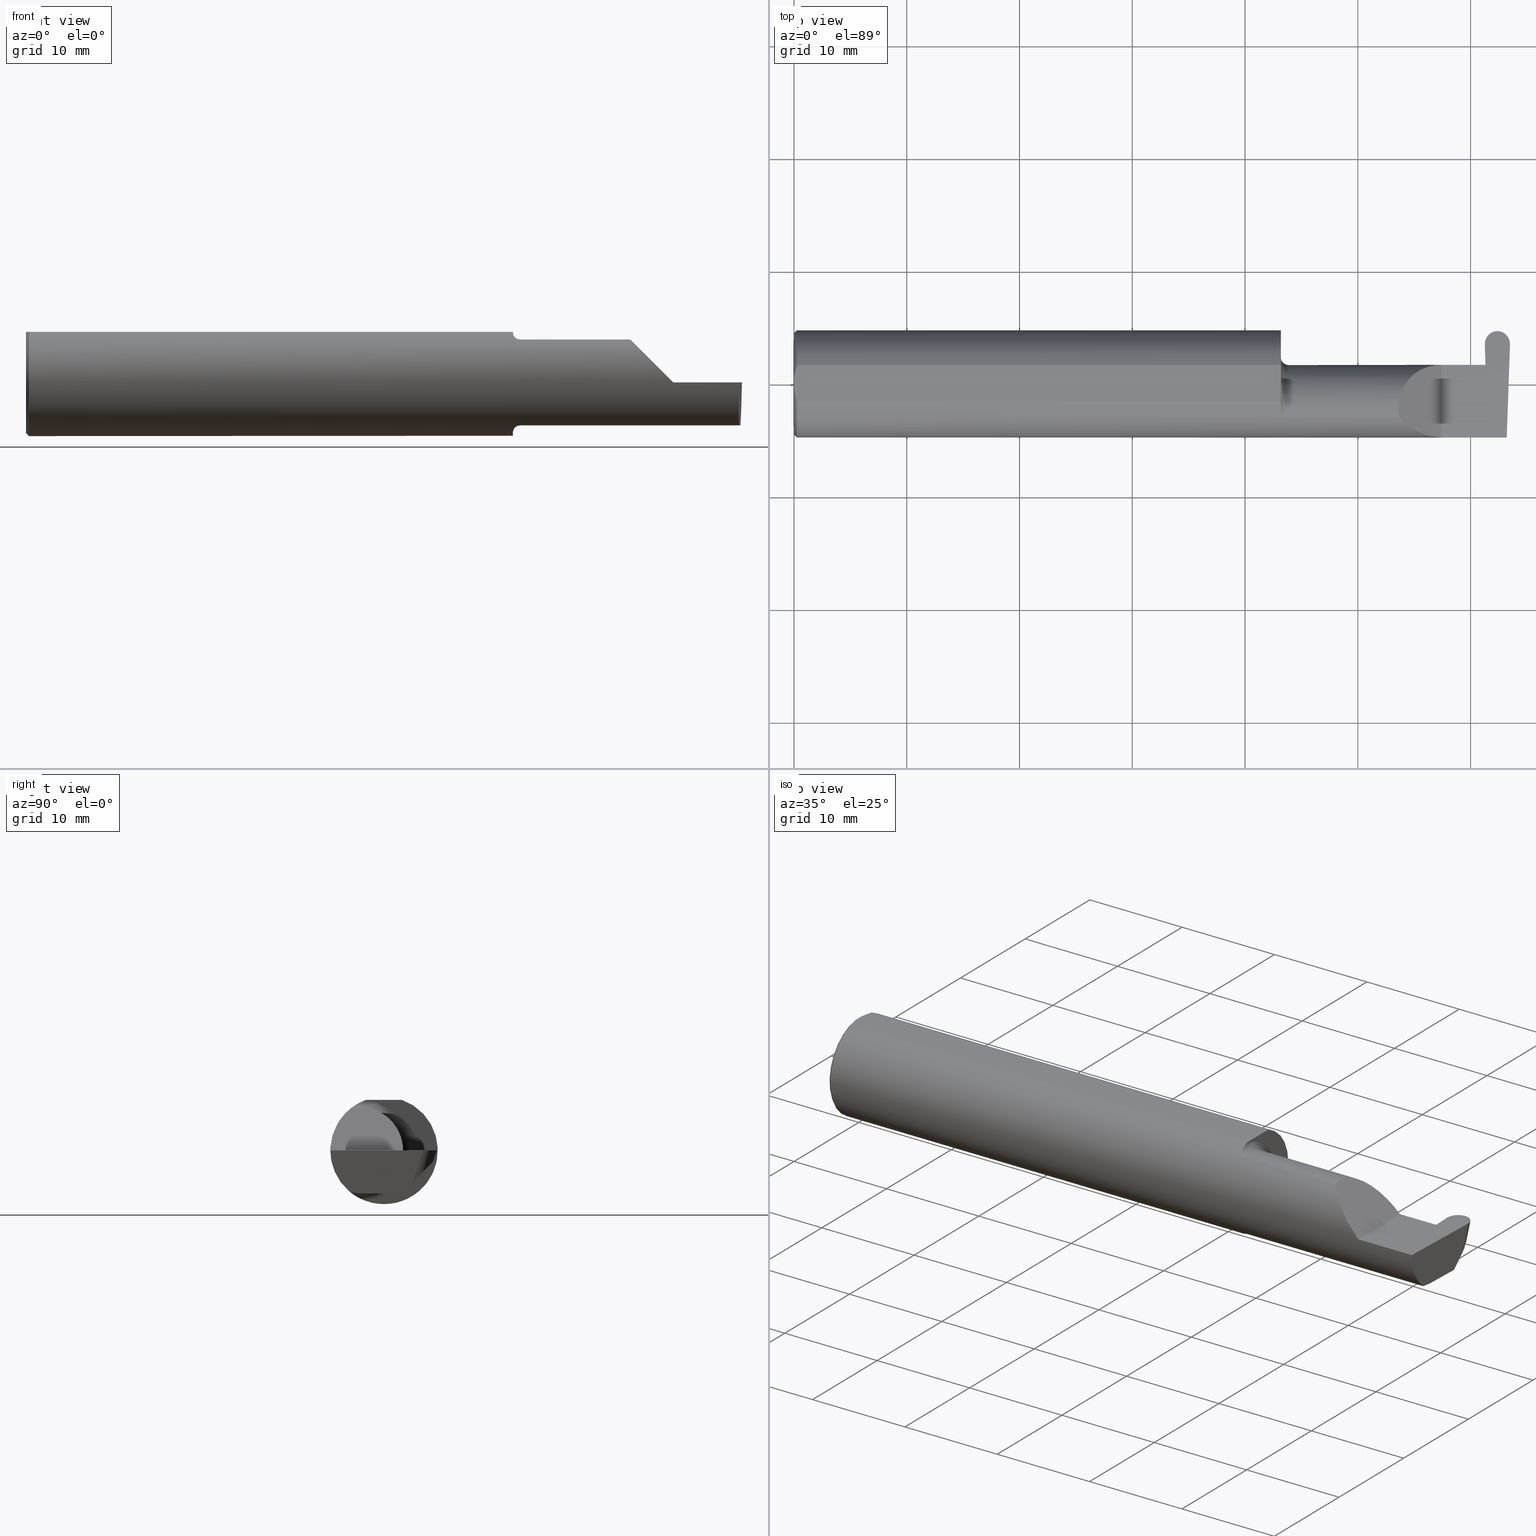
[diagram: canonical four-view strip — front | top / right | iso, engineering-drawing reading convention]
A machine part, canonical four-view strip (front | top / right | iso — engineering-drawing reading convention). The complete STEP part file that produces these views, byte-faithful:
ISO-10303-21;
HEADER;
FILE_DESCRIPTION (( 'STEP AP203' ),
    '1' );
FILE_NAME ('222179-GFR087-12.STEP',
    '2024-06-28T18:03:14',
    ( '' ),
    ( '' ),
    'SwSTEP 2.0',
    'SolidWorks 2024',
    '' );
FILE_SCHEMA (( 'CONFIG_CONTROL_DESIGN' ));
ENDSEC;

DATA;
#1 = CARTESIAN_POINT ( 'NONE',  ( 2.494604638945828956, 0.06030305154315079852, -0.1500000000000000500 ) ) ;
#2 = ORIENTED_EDGE ( 'NONE', *, *, #480, .F. ) ;
#3 = CARTESIAN_POINT ( 'NONE',  ( 2.488471823259917226, -0.1172600179964006784, -0.1461167706989303094 ) ) ;
#4 = DIRECTION ( 'NONE',  ( -2.398695346254066018E-17, 1.000000000000000000, 0.000000000000000000 ) ) ;
#5 = ORIENTED_EDGE ( 'NONE', *, *, #268, .F. ) ;
#6 = EDGE_CURVE ( 'NONE', #579, #405, #473, .T. ) ;
#7 = DIRECTION ( 'NONE',  ( 0.000000000000000000, -0.7071067811865434649, -0.7071067811865515695 ) ) ;
#8 = APPROVAL_PERSON_ORGANIZATION ( #537, #309, #125 ) ;
#9 = FACE_OUTER_BOUND ( 'NONE', #608, .T. ) ;
#10 = VERTEX_POINT ( 'NONE', #22 ) ;
#11 = PLANE ( 'NONE',  #260 ) ;
#12 = CARTESIAN_POINT ( 'NONE',  ( 0.005151108632379722968, -0.04888864921576022843, 0.1763499999999999235 ) ) ;
#13 = EDGE_LOOP ( 'NONE', ( #325, #252, #225, #598, #290 ) ) ;
#14 = PERSON ( 'UNSPECIFIED', 'UNSPECIFIED', 'UNSPECIFIED', ('UNSPECIFIED'), ('UNSPECIFIED'), ('UNSPECIFIED') ) ;
#15 = CALENDAR_DATE ( 2024, 28, 6 ) ;
#16 = DIRECTION ( 'NONE',  ( 1.000000000000000000, 0.000000000000000000, 0.000000000000000000 ) ) ;
#17 = ORIENTED_EDGE ( 'NONE', *, *, #128, .F. ) ;
#18 = SHAPE_DEFINITION_REPRESENTATION ( #276, #133 ) ;
#19 = CARTESIAN_POINT ( 'NONE',  ( 2.417117359278221134, -0.08344969023253218099, -0.1500000000000000500 ) ) ;
#20 = AXIS2_PLACEMENT_3D ( 'NONE', #331, #284, #607 ) ;
#21 = EDGE_CURVE ( 'NONE', #586, #239, #690, .T. ) ;
#22 = CARTESIAN_POINT ( 'NONE',  ( 0.01000000000000013205, 0.06325108694718235836, 0.1763499999999999235 ) ) ;
#23 = SECURITY_CLASSIFICATION_LEVEL ( 'unclassified' ) ;
#24 = CARTESIAN_POINT ( 'NONE',  ( 1.724999999999999867, -0.1172600179964006784, -0.1461167706989303650 ) ) ;
#25 = ORIENTED_EDGE ( 'NONE', *, *, #426, .T. ) ;
#26 = LINE ( 'NONE', #19, #373 ) ;
#27 = EDGE_LOOP ( 'NONE', ( #571, #553, #267, #168, #187 ) ) ;
#28 = EDGE_CURVE ( 'NONE', #63, #681, #199, .T. ) ;
#29 = AXIS2_PLACEMENT_3D ( 'NONE', #498, #16, #191 ) ;
#30 = DIRECTION ( 'NONE',  ( 0.02739170151059986541, 0.3089010440752013031, 0.9506996579664918068 ) ) ;
#31 = VECTOR ( 'NONE', #60, 39.37007874015748854 ) ;
#32 = CARTESIAN_POINT ( 'NONE',  ( 0.000000000000000000, 0.000000000000000000, -0.1773499999999999521 ) ) ;
#33 = ORIENTED_EDGE ( 'NONE', *, *, #610, .T. ) ;
#34 = MECHANICAL_CONTEXT ( 'NONE', #245, 'mechanical' ) ;
#35 = CARTESIAN_POINT ( 'NONE',  ( 1.699999999999999956, -0.08334999999999999354, 0.000000000000000000 ) ) ;
#36 = DIRECTION ( 'NONE',  ( -0.03489949670249319069, -0.9993908270190959842, 0.000000000000000000 ) ) ;
#37 = ORIENTED_EDGE ( 'NONE', *, *, #170, .T. ) ;
#38 = CALENDAR_DATE ( 2024, 28, 6 ) ;
#39 = CARTESIAN_POINT ( 'NONE',  ( 2.417117327835069940, -0.08334999999999997966, -0.1500000000000000222 ) ) ;
#40 = LINE ( 'NONE', #485, #661 ) ;
#41 = ADVANCED_FACE ( 'NONE', ( #361 ), #78, .T. ) ;
#42 = TOROIDAL_SURFACE ( 'NONE', #541, 0.1749999999999999334, 0.02499999999999993894 ) ;
#43 = ORIENTED_EDGE ( 'NONE', *, *, #316, .T. ) ;
#44 = CARTESIAN_POINT ( 'NONE',  ( 2.405147528298442694, 0.06655862405286418204, -0.005234924505380752179 ) ) ;
#45 = CARTESIAN_POINT ( 'NONE',  ( 1.699999999999999956, -0.06325108694718287183, 0.1763499999999999235 ) ) ;
#46 = EDGE_LOOP ( 'NONE', ( #429, #705, #25, #442, #676, #464, #425, #432, #209, #58 ) ) ;
#47 = CARTESIAN_POINT ( 'NONE',  ( 2.455902844999999779, 0.1800649307963945456, -0.01411139200474581350 ) ) ;
#48 = DIRECTION ( 'NONE',  ( -0.000000000000000000, 1.000000000000000000, -0.000000000000000000 ) ) ;
#49 = ORIENTED_EDGE ( 'NONE', *, *, #268, .T. ) ;
#50 = EDGE_CURVE ( 'NONE', #665, #614, #417, .T. ) ;
#51 =( CONVERSION_BASED_UNIT ( 'INCH', #174 ) LENGTH_UNIT ( ) NAMED_UNIT ( #447 ) );
#52 = CARTESIAN_POINT ( 'NONE',  ( 2.489588163846105484, -0.08335000000000010456, -0.1500000000000000500 ) ) ;
#53 = ORIENTED_EDGE ( 'NONE', *, *, #263, .F. ) ;
#54 = AXIS2_PLACEMENT_3D ( 'NONE', #539, #428, #157 ) ;
#55 = AXIS2_PLACEMENT_3D ( 'NONE', #634, #569, #72 ) ;
#56 = CARTESIAN_POINT ( 'NONE',  ( 2.733184360054361939, -0.08335000000000010456, -0.1500000000000000500 ) ) ;
#57 = CARTESIAN_POINT ( 'NONE',  ( 1.702960551809340473, -0.09317341542745755101, -0.1626248379125196653 ) ) ;
#58 = ORIENTED_EDGE ( 'NONE', *, *, #503, .F. ) ;
#59 =( BOUNDED_CURVE ( )  B_SPLINE_CURVE ( 3, ( #597, #543, #701, #145 ),
 .UNSPECIFIED., .F., .T. ) 
 B_SPLINE_CURVE_WITH_KNOTS ( ( 4, 4 ),
 ( 5.852427379562186616, 6.746954780470634461 ),
 .UNSPECIFIED. ) 
 CURVE ( )  GEOMETRIC_REPRESENTATION_ITEM ( )  RATIONAL_B_SPLINE_CURVE ( ( 1.000000000000000000, 0.9344226172588802060, 0.9344226172588802060, 1.000000000000000000 ) ) 
 REPRESENTATION_ITEM ( '' )  );
#60 = DIRECTION ( 'NONE',  ( -0.02739170151060013256, 0.3089010440752013587, 0.9506996579664918068 ) ) ;
#61 = CARTESIAN_POINT ( 'NONE',  ( 2.417117327835069940, -0.08334999999999997966, -0.1500000000000000222 ) ) ;
#62 = EDGE_CURVE ( 'NONE', #123, #575, #247, .T. ) ;
#63 = VERTEX_POINT ( 'NONE', #255 ) ;
#64 = CC_DESIGN_PERSON_AND_ORGANIZATION_ASSIGNMENT ( #197, #520, ( #683 ) ) ;
#65 = LINE ( 'NONE', #223, #403 ) ;
#66 = CARTESIAN_POINT ( 'NONE',  ( 2.455902844999999779, 0.1722946655495198598, -0.03800838599362971193 ) ) ;
#67 = ORIENTED_EDGE ( 'NONE', *, *, #330, .T. ) ;
#68 = AXIS2_PLACEMENT_3D ( 'NONE', #360, #521, #629 ) ;
#69 = CARTESIAN_POINT ( 'NONE',  ( 0.001616639753276021213, 0.03405189565400638246, 0.1763499999999999235 ) ) ;
#70 = CARTESIAN_POINT ( 'NONE',  ( 2.455902844999999779, 0.1748862760345988587, -0.03004384457775134687 ) ) ;
#71 = EDGE_LOOP ( 'NONE', ( #695, #311, #410 ) ) ;
#72 = DIRECTION ( 'NONE',  ( 1.000000000000000000, 0.000000000000000000, 0.000000000000000000 ) ) ;
#73 = PRODUCT_DEFINITION ( 'UNKNOWN', '', #683, #640 ) ;
#74 = CARTESIAN_POINT ( 'NONE',  ( 1.713203859946834218, -0.1120371980050639538, -0.1501764597936558199 ) ) ;
#75 = VERTEX_POINT ( 'NONE', #45 ) ;
#76 = ADVANCED_FACE ( 'NONE', ( #205 ), #158, .T. ) ;
#77 = LINE ( 'NONE', #295, #215 ) ;
#78 = CYLINDRICAL_SURFACE ( 'NONE', #402, 0.04399999999999999745 ) ;
#79 = DATE_AND_TIME ( #674, #422 ) ;
#80 = DIRECTION ( 'NONE',  ( 1.000000000000000000, -0.000000000000000000, -0.000000000000000000 ) ) ;
#81 = LOCAL_TIME ( 11, 3, 14.00000000000000000, #688 ) ;
#82 = ORIENTED_EDGE ( 'NONE', *, *, #278, .F. ) ;
#83 = FACE_OUTER_BOUND ( 'NONE', #130, .T. ) ;
#84 = EDGE_LOOP ( 'NONE', ( #230, #378, #293, #522, #138, #648, #394, #336, #372, #98, #236, #216, #398 ) ) ;
#85 = ADVANCED_FACE ( 'NONE', ( #376 ), #208, .F. ) ;
#86 = CARTESIAN_POINT ( 'NONE',  ( 2.417002248080593940, 0.06409798100084941608, -0.1462050705423014185 ) ) ;
#87 = CARTESIAN_POINT ( 'NONE',  ( 2.499922542640338197, 0.1372830298860648612, 0.0005638438891804136138 ) ) ;
#88 = CARTESIAN_POINT ( 'NONE',  ( 2.202189699843948745, -0.1873500000000000443, 0.05781030015605096578 ) ) ;
#89 = VECTOR ( 'NONE', #440, 39.37007874015748143 ) ;
#90 = ORIENTED_EDGE ( 'NONE', *, *, #6, .F. ) ;
#91 = APPROVAL_ROLE ( '' ) ;
#92 = ADVANCED_FACE ( 'NONE', ( #647 ), #653, .F. ) ;
#93 = CARTESIAN_POINT ( 'NONE',  ( 1.700353553376444671, -0.07868116735658683969, 0.1701139256562800017 ) ) ;
#94 = FACE_OUTER_BOUND ( 'NONE', #140, .T. ) ;
#95 = ADVANCED_FACE ( 'NONE', ( #270 ), #594, .F. ) ;
#96 = CARTESIAN_POINT ( 'NONE',  ( 1.724999999999999867, -0.1172600179964006784, 0.1461167706989303650 ) ) ;
#97 = DIRECTION ( 'NONE',  ( 0.01806679408117492502, 0.000000000000000000, -0.9998367821557817559 ) ) ;
#98 = ORIENTED_EDGE ( 'NONE', *, *, #602, .T. ) ;
#99 = FACE_OUTER_BOUND ( 'NONE', #13, .T. ) ;
#100 = CYLINDRICAL_SURFACE ( 'NONE', #637, 0.1873499999999999888 ) ;
#101 = AXIS2_PLACEMENT_3D ( 'NONE', #285, #611, #175 ) ;
#102 = EDGE_LOOP ( 'NONE', ( #280, #632, #303, #234, #408, #502 ) ) ;
#103 = CARTESIAN_POINT ( 'NONE',  ( 2.405177986947488300, 0.06658908270190942724, -0.003489949670253836810 ) ) ;
#104 = DIRECTION ( 'NONE',  ( -1.000000000000000000, -0.000000000000000000, -0.000000000000000000 ) ) ;
#105 = EDGE_LOOP ( 'NONE', ( #679, #241, #127, #450 ) ) ;
#106 = EDGE_CURVE ( 'NONE', #381, #656, #40, .T. ) ;
#107 = CARTESIAN_POINT ( 'NONE',  ( 1.702945243422982813, -0.09312071749437433876, 0.1626553472577906001 ) ) ;
#108 = DIRECTION ( 'NONE',  ( 0.000000000000000000, -0.9998476951563912696, 0.01745240643728358451 ) ) ;
#109 = DIRECTION ( 'NONE',  ( 0.000000000000000000, 0.000000000000000000, 1.000000000000000000 ) ) ;
#110 = CARTESIAN_POINT ( 'NONE',  ( 2.414359555045604289, 0.06664999999999991764, -9.645561665750322649E-21 ) ) ;
#111 = VERTEX_POINT ( 'NONE', #419 ) ;
#112 = VECTOR ( 'NONE', #577, 39.37007874015748143 ) ;
#113 = VECTOR ( 'NONE', #448, 39.37007874015748143 ) ;
#114 = CARTESIAN_POINT ( 'NONE',  ( 2.068402844999999601, -0.1172600179964006784, -0.1461167706989303094 ) ) ;
#115 = EDGE_LOOP ( 'NONE', ( #670, #43, #184, #627, #507, #673 ) ) ;
#116 = DIRECTION ( 'NONE',  ( -1.000000000000000000, -0.000000000000000000, -0.000000000000000000 ) ) ;
#117 = EDGE_CURVE ( 'NONE', #566, #513, #528, .T. ) ;
#118 = CARTESIAN_POINT ( 'NONE',  ( 1.724999999999999867, -0.1172600179964006784, 0.1461167706989303650 ) ) ;
#119 = ORIENTED_EDGE ( 'NONE', *, *, #50, .F. ) ;
#120 = B_SPLINE_CURVE_WITH_KNOTS ( 'NONE', 3,
 ( #44, #103, #593, #265 ),
 .UNSPECIFIED., .F., .F.,
 ( 4, 4 ),
 ( 0.000000000000000000, 1.000000000000000000 ),
 .UNSPECIFIED. ) ;
#121 = CARTESIAN_POINT ( 'NONE',  ( 2.496782013450319582, 0.1018667288808076804, -0.1084363226623426962 ) ) ;
#122 = LINE ( 'NONE', #114, #204 ) ;
#123 = VERTEX_POINT ( 'NONE', #52 ) ;
#124 = AXIS2_PLACEMENT_3D ( 'NONE', #350, #404, #129 ) ;
#125 = APPROVAL_ROLE ( '' ) ;
#126 = LINE ( 'NONE', #229, #89 ) ;
#127 = ORIENTED_EDGE ( 'NONE', *, *, #414, .F. ) ;
#128 = EDGE_CURVE ( 'NONE', #549, #513, #161, .T. ) ;
#129 = DIRECTION ( 'NONE',  ( 0.000000000000000000, -1.000000000000000000, 0.000000000000000000 ) ) ;
#130 = EDGE_LOOP ( 'NONE', ( #154, #536, #660 ) ) ;
#131 = CARTESIAN_POINT ( 'NONE',  ( 2.155331797197863608, 0.06665000000000001479, 0.1046682028021362204 ) ) ;
#132 = CARTESIAN_POINT ( 'NONE',  ( 2.733184360054361939, -0.08335000000000010456, -0.1500000000000000500 ) ) ;
#133 = ADVANCED_BREP_SHAPE_REPRESENTATION ( '222179-GFR087-12', ( #412, #55 ), #388 ) ;
#134 = VECTOR ( 'NONE', #365, 39.37007874015748143 ) ;
#135 = EDGE_CURVE ( 'NONE', #499, #192, #312, .T. ) ;
#136 = PLANE ( 'NONE',  #483 ) ;
#137 = APPROVAL ( #367, 'UNSPECIFIED' ) ;
#138 = ORIENTED_EDGE ( 'NONE', *, *, #426, .F. ) ;
#139 = CARTESIAN_POINT ( 'NONE',  ( 2.260000000000000231, -0.1873499999999999888, 2.939152317953647352E-17 ) ) ;
#140 = EDGE_LOOP ( 'NONE', ( #595, #476, #525, #262, #340, #2, #90, #389, #49 ) ) ;
#141 = DIRECTION ( 'NONE',  ( -0.7071067811865509034, 0.000000000000000000, 0.7071067811865440200 ) ) ;
#142 = DIRECTION ( 'NONE',  ( -1.000000000000000000, -0.000000000000000000, -0.000000000000000000 ) ) ;
#143 = COORDINATED_UNIVERSAL_TIME_OFFSET ( 8, 0, .BEHIND. ) ;
#144 = CARTESIAN_POINT ( 'NONE',  ( 2.488471823259917226, -0.1172600179964006784, -0.1461167706989303094 ) ) ;
#145 = CARTESIAN_POINT ( 'NONE',  ( 2.488576259503493926, -0.1873499999999999888, 0.000000000000000000 ) ) ;
#146 = LOCAL_TIME ( 11, 3, 14.00000000000000000, #143 ) ;
#147 = PERSON_AND_ORGANIZATION_ROLE ( 'classification_officer' ) ;
#148 = ADVANCED_FACE ( 'NONE', ( #274 ), #100, .T. ) ;
#149 = CARTESIAN_POINT ( 'NONE',  ( 0.000000000000000000, -0.01880691362238934641, 0.1763499999999999235 ) ) ;
#150 = DIRECTION ( 'NONE',  ( 0.000000000000000000, -0.01745240643728358451, -0.9998476951563912696 ) ) ;
#151 = ORIENTED_EDGE ( 'NONE', *, *, #489, .T. ) ;
#152 = CARTESIAN_POINT ( 'NONE',  ( 1.713163223656403167, -0.1119926267047278018, 0.1502091925606062472 ) ) ;
#153 = CARTESIAN_POINT ( 'NONE',  ( 2.417363697998881733, -2.354248658836814556, -0.1239957194858760936 ) ) ;
#154 = ORIENTED_EDGE ( 'NONE', *, *, #391, .F. ) ;
#155 = FACE_OUTER_BOUND ( 'NONE', #46, .T. ) ;
#156 = ADVANCED_FACE ( 'NONE', ( #547 ), #491, .F. ) ;
#157 = DIRECTION ( 'NONE',  ( 0.000000000000000000, 0.000000000000000000, -1.000000000000000000 ) ) ;
#158 = CONICAL_SURFACE ( 'NONE', #54, 0.1773499999999999521, 0.7853981633974431720 ) ;
#159 = LOCAL_TIME ( 11, 3, 14.00000000000000000, #583 ) ;
#160 = CARTESIAN_POINT ( 'NONE',  ( 2.429140065301251372, 0.1846500000000001473, 8.878101985489642774E-18 ) ) ;
#161 = LINE ( 'NONE', #487, #193 ) ;
#162 = ORIENTED_EDGE ( 'NONE', *, *, #221, .T. ) ;
#163 = LINE ( 'NONE', #400, #682 ) ;
#164 = EDGE_LOOP ( 'NONE', ( #37, #540, #283, #162 ) ) ;
#165 = CC_DESIGN_PERSON_AND_ORGANIZATION_ASSIGNMENT ( #691, #638, ( #683 ) ) ;
#166 = CARTESIAN_POINT ( 'NONE',  ( 2.415023676549680420, 0.1018667288808076665, -0.1084363226623427101 ) ) ;
#167 = DIRECTION ( 'NONE',  ( -0.03701744261649742712, -0.7066221440565398915, -0.7066221440565478851 ) ) ;
#168 = ORIENTED_EDGE ( 'NONE', *, *, #232, .T. ) ;
#169 = VECTOR ( 'NONE', #48, 39.37007874015748143 ) ;
#170 = EDGE_CURVE ( 'NONE', #322, #592, #457, .T. ) ;
#171 = CARTESIAN_POINT ( 'NONE',  ( -0.001039370078739994957, 0.1723030515431495657, -0.03799999999999999906 ) ) ;
#172 = DIRECTION ( 'NONE',  ( 0.000000000000000000, -1.000000000000000000, 0.000000000000000000 ) ) ;
#173 = VERTEX_POINT ( 'NONE', #497 ) ;
#174 = LENGTH_MEASURE_WITH_UNIT ( LENGTH_MEASURE( 0.02539999999999999897 ), #399 );
#175 = DIRECTION ( 'NONE',  ( -1.000000000000000000, 0.000000000000000000, 1.224646799147353947E-16 ) ) ;
#176 = ORIENTED_EDGE ( 'NONE', *, *, #307, .T. ) ;
#177 = LINE ( 'NONE', #443, #113 ) ;
#178 = CARTESIAN_POINT ( 'NONE',  ( 2.455902844999999779, 0.1774764172755823044, -0.02207801745350519013 ) ) ;
#179 = EDGE_CURVE ( 'NONE', #621, #579, #59, .T. ) ;
#180 = ORIENTED_EDGE ( 'NONE', *, *, #179, .F. ) ;
#181 = CIRCLE ( 'NONE', #363, 0.1749999999999999056 ) ;
#182 = PERSON_AND_ORGANIZATION ( #14, #458 ) ;
#183 = CARTESIAN_POINT ( 'NONE',  ( 2.113883229301068312, -0.1172600179964008310, 0.1461167706989301707 ) ) ;
#184 = ORIENTED_EDGE ( 'NONE', *, *, #633, .T. ) ;
#185 = PERSON_AND_ORGANIZATION ( #14, #458 ) ;
#186 = FACE_OUTER_BOUND ( 'NONE', #164, .T. ) ;
#187 = ORIENTED_EDGE ( 'NONE', *, *, #242, .T. ) ;
#188 = EDGE_CURVE ( 'NONE', #527, #111, #212, .T. ) ;
#189 = EDGE_CURVE ( 'NONE', #488, #356, #431, .T. ) ;
#190 = APPROVAL ( #257, 'UNSPECIFIED' ) ;
#191 = DIRECTION ( 'NONE',  ( 0.000000000000000000, 0.000000000000000000, -1.000000000000000000 ) ) ;
#192 = VERTEX_POINT ( 'NONE', #479 ) ;
#193 = VECTOR ( 'NONE', #259, 39.37007874015748143 ) ;
#194 = CARTESIAN_POINT ( 'NONE',  ( 1.699999999999999956, 0.1873499999999999055, 0.000000000000000000 ) ) ;
#195 = CARTESIAN_POINT ( 'NONE',  ( 3.749399456654646757E-32, -0.1873499999999999610, 3.061616997868383634E-16 ) ) ;
#196 = DIRECTION ( 'NONE',  ( 0.000000000000000000, 0.9510565162951534202, -0.3090169943749480619 ) ) ;
#197 = PERSON_AND_ORGANIZATION ( #14, #458 ) ;
#198 = CYLINDRICAL_SURFACE ( 'NONE', #413, 0.04399999999999999051 ) ;
#199 = LINE ( 'NONE', #415, #112 ) ;
#200 = ADVANCED_FACE ( 'NONE', ( #94 ), #582, .F. ) ;
#201 = APPLICATION_PROTOCOL_DEFINITION ( 'international standard', 'config_control_design', 1994, #273 ) ;
#202 = UNCERTAINTY_MEASURE_WITH_UNIT (LENGTH_MEASURE( 1.000000000000000082E-05 ), #51, 'distance_accuracy_value', 'NONE');
#203 = CARTESIAN_POINT ( 'NONE',  ( 2.488576259503493926, -0.1873499999999999888, 0.000000000000000000 ) ) ;
#204 = VECTOR ( 'NONE', #512, 39.37007874015748143 ) ;
#205 = FACE_OUTER_BOUND ( 'NONE', #436, .T. ) ;
#206 = LOCAL_TIME ( 11, 3, 14.00000000000000000, #291 ) ;
#207 = PLANE ( 'NONE',  #615 ) ;
#208 = PLANE ( 'NONE',  #518 ) ;
#209 = ORIENTED_EDGE ( 'NONE', *, *, #62, .F. ) ;
#210 = EDGE_CURVE ( 'NONE', #566, #75, #335, .T. ) ;
#211 = CARTESIAN_POINT ( 'NONE',  ( 2.411899392914586659, 0.1370998259008695541, 0.000000000000000000 ) ) ;
#212 = LINE ( 'NONE', #369, #169 ) ;
#213 = CARTESIAN_POINT ( 'NONE',  ( 2.489588163846105484, -0.08335000000000010456, -0.1500000000000000500 ) ) ;
#214 = DIRECTION ( 'NONE',  ( 0.000000000000000000, 0.000000000000000000, -1.000000000000000000 ) ) ;
#215 = VECTOR ( 'NONE', #675, 39.37007874015748143 ) ;
#216 = ORIENTED_EDGE ( 'NONE', *, *, #170, .F. ) ;
#217 = EDGE_CURVE ( 'NONE', #621, #318, #122, .T. ) ;
#218 = CARTESIAN_POINT ( 'NONE',  ( 1.708439486659307116, -0.1064616213911159653, -0.1542305641651499637 ) ) ;
#219 = CARTESIAN_POINT ( 'NONE',  ( 2.876828993045917215, 0.1873499999999998500, 0.1763499999999999235 ) ) ;
#220 = VERTEX_POINT ( 'NONE', #66 ) ;
#221 = EDGE_CURVE ( 'NONE', #556, #322, #181, .T. ) ;
#222 = B_SPLINE_CURVE_WITH_KNOTS ( 'NONE', 3,
 ( #588, #596, #93, #534, #107, #584, #258, #152, #368, #269, #530, #96 ),
 .UNSPECIFIED., .F., .F.,
 ( 4, 2, 2, 2, 2, 4 ),
 ( 4.423516731080805653E-05, 0.0004615475116586709213, 0.0008788598560065337319, 0.001296172200354396651, 0.001504828372528328436, 0.001713484544702260221 ),
 .UNSPECIFIED. ) ;
#223 = CARTESIAN_POINT ( 'NONE',  ( 2.411883147359661361, 0.1372830298860648335, 0.0005638438891804070001 ) ) ;
#224 = CARTESIAN_POINT ( 'NONE',  ( 2.417090374579074830, 0.002105059811797824979, -0.1500000000000000500 ) ) ;
#225 = ORIENTED_EDGE ( 'NONE', *, *, #278, .T. ) ;
#226 = AXIS2_PLACEMENT_3D ( 'NONE', #194, #302, #524 ) ;
#227 = CIRCLE ( 'NONE', #628, 0.1873499999999999888 ) ;
#228 = DIRECTION ( 'NONE',  ( -0.03489949670249319069, -0.9993908270190959842, 0.000000000000000000 ) ) ;
#229 = CARTESIAN_POINT ( 'NONE',  ( 2.414359555045604289, 0.06664999999999991764, -9.645561665750322649E-21 ) ) ;
#230 = ORIENTED_EDGE ( 'NONE', *, *, #217, .F. ) ;
#231 = CARTESIAN_POINT ( 'NONE',  ( 2.498904563091020492, 0.1423838600483239292, -0.06791919149482596174 ) ) ;
#232 = EDGE_CURVE ( 'NONE', #381, #63, #126, .T. ) ;
#233 = CARTESIAN_POINT ( 'NONE',  ( 0.000000000000000000, -0.06325108694718235836, 0.1763499999999999235 ) ) ;
#234 = ORIENTED_EDGE ( 'NONE', *, *, #666, .F. ) ;
#235 = CARTESIAN_POINT ( 'NONE',  ( 2.415023676549680420, 0.1018667288808076665, -0.1084363226623427101 ) ) ;
#236 = ORIENTED_EDGE ( 'NONE', *, *, #612, .F. ) ;
#237 = AXIS2_PLACEMENT_3D ( 'NONE', #153, #371, #97 ) ;
#238 = LINE ( 'NONE', #305, #433 ) ;
#239 = VERTEX_POINT ( 'NONE', #1 ) ;
#240 = DIRECTION ( 'NONE',  ( -0.02739170151059987582, -0.3089010440752013587, -0.9506996579664918068 ) ) ;
#241 = ORIENTED_EDGE ( 'NONE', *, *, #232, .F. ) ;
#242 = EDGE_CURVE ( 'NONE', #63, #499, #306, .T. ) ;
#243 = LINE ( 'NONE', #515, #694 ) ;
#244 = ORIENTED_EDGE ( 'NONE', *, *, #221, .F. ) ;
#245 = APPLICATION_CONTEXT ( 'configuration controlled 3d designs of mechanical parts and assemblies' ) ;
#246 = CARTESIAN_POINT ( 'NONE',  ( 1.724999999999999867, -0.08334999999999999354, 0.000000000000000000 ) ) ;
#247 = LINE ( 'NONE', #132, #332 ) ;
#248 = PERSON_AND_ORGANIZATION ( #14, #458 ) ;
#249 = EDGE_CURVE ( 'NONE', #575, #63, #366, .T. ) ;
#250 = B_SPLINE_CURVE_WITH_KNOTS ( 'NONE', 3,
 ( #385, #69, #342, #495 ),
 .UNSPECIFIED., .F., .F.,
 ( 4, 4 ),
 ( 0.01188664626022242071, 0.01304646959483746725 ),
 .UNSPECIFIED. ) ;
#251 = DIRECTION ( 'NONE',  ( 0.000000000000000000, 1.000000000000000000, 0.000000000000000000 ) ) ;
#252 = ORIENTED_EDGE ( 'NONE', *, *, #657, .F. ) ;
#253 = PERSON_AND_ORGANIZATION_ROLE ( 'creator' ) ;
#254 = DIRECTION ( 'NONE',  ( 0.000000000000000000, -1.000000000000000000, 0.000000000000000000 ) ) ;
#255 = CARTESIAN_POINT ( 'NONE',  ( 2.414454177608814867, 0.06655862405286415429, -0.005234924505383332580 ) ) ;
#256 = ORIENTED_EDGE ( 'NONE', *, *, #62, .T. ) ;
#257 = APPROVAL_STATUS ( 'not_yet_approved' ) ;
#258 = CARTESIAN_POINT ( 'NONE',  ( 1.708475602106621416, -0.1064978748893405935, 0.1542035505680383889 ) ) ;
#259 = DIRECTION ( 'NONE',  ( 0.7071067811865511255, 0.000000000000000000, -0.7071067811865439090 ) ) ;
#260 = AXIS2_PLACEMENT_3D ( 'NONE', #56, #109, #658 ) ;
#261 = EDGE_CURVE ( 'NONE', #566, #527, #466, .T. ) ;
#262 = ORIENTED_EDGE ( 'NONE', *, *, #610, .F. ) ;
#263 = EDGE_CURVE ( 'NONE', #665, #239, #292, .T. ) ;
#264 = CC_DESIGN_PERSON_AND_ORGANIZATION_ASSIGNMENT ( #298, #253, ( #73 ) ) ;
#265 = CARTESIAN_POINT ( 'NONE',  ( 2.405238904245578624, 0.06664999999999991764, 0.000000000000000000 ) ) ;
#266 = DIRECTION ( 'NONE',  ( 1.000000000000000000, 0.000000000000000000, 0.000000000000000000 ) ) ;
#267 = ORIENTED_EDGE ( 'NONE', *, *, #106, .F. ) ;
#268 = EDGE_CURVE ( 'NONE', #614, #654, #587, .T. ) ;
#269 = CARTESIAN_POINT ( 'NONE',  ( 1.719481469043492528, -0.1163560528186166759, 0.1468472430636322823 ) ) ;
#270 = FACE_OUTER_BOUND ( 'NONE', #105, .T. ) ;
#271 = ORIENTED_EDGE ( 'NONE', *, *, #128, .T. ) ;
#272 = LINE ( 'NONE', #383, #31 ) ;
#273 = APPLICATION_CONTEXT ( 'configuration controlled 3d designs of mechanical parts and assemblies' ) ;
#274 = FACE_OUTER_BOUND ( 'NONE', #84, .T. ) ;
#275 = VECTOR ( 'NONE', #630, 39.37007874015748143 ) ;
#276 = PRODUCT_DEFINITION_SHAPE ( 'NONE', 'NONE',  #73 ) ;
#277 =( NAMED_UNIT ( * ) SI_UNIT ( $, .STERADIAN. ) SOLID_ANGLE_UNIT ( ) );
#278 = EDGE_CURVE ( 'NONE', #544, #220, #463, .T. ) ;
#279 = CARTESIAN_POINT ( 'NONE',  ( 1.699999999999999734, -0.07368234487347204154, -0.1723418180300747282 ) ) ;
#280 = ORIENTED_EDGE ( 'NONE', *, *, #210, .T. ) ;
#281 = PLANE ( 'NONE',  #639 ) ;
#282 = CARTESIAN_POINT ( 'NONE',  ( 0.01000000000000013205, -0.06325108694718235836, 0.1763499999999999235 ) ) ;
#283 = ORIENTED_EDGE ( 'NONE', *, *, #554, .T. ) ;
#284 = DIRECTION ( 'NONE',  ( -1.000000000000000000, -0.000000000000000000, -0.000000000000000000 ) ) ;
#285 = CARTESIAN_POINT ( 'NONE',  ( 2.500000000000000000, -0.2500000000000000555, 0.000000000000000000 ) ) ;
#286 = ORIENTED_EDGE ( 'NONE', *, *, #465, .T. ) ;
#287 = AXIS2_PLACEMENT_3D ( 'NONE', #219, #501, #384 ) ;
#288 = CARTESIAN_POINT ( 'NONE',  ( 2.405147528298442694, 0.06655862405286418204, -0.005234924505380752179 ) ) ;
#289 = CARTESIAN_POINT ( 'NONE',  ( 2.455902844999999779, 0.1722946655495198598, -0.03800838599362971193 ) ) ;
#290 = ORIENTED_EDGE ( 'NONE', *, *, #685, .F. ) ;
#291 = COORDINATED_UNIVERSAL_TIME_OFFSET ( 8, 0, .BEHIND. ) ;
#292 = LINE ( 'NONE', #343, #505 ) ;
#293 = ORIENTED_EDGE ( 'NONE', *, *, #6, .T. ) ;
#294 = DATE_TIME_ROLE ( 'classification_date' ) ;
#295 = CARTESIAN_POINT ( 'NONE',  ( 2.260000000000000231, -0.2500000000000000555, 2.939152317953647352E-17 ) ) ;
#296 = CARTESIAN_POINT ( 'NONE',  ( 2.454465662695322070, 0.1220110860126060182, -0.05039576335554840636 ) ) ;
#297 = AXIS2_PLACEMENT_3D ( 'NONE', #535, #108, #150 ) ;
#298 = PERSON_AND_ORGANIZATION ( #14, #458 ) ;
#299 = LINE ( 'NONE', #578, #560 ) ;
#300 = ADVANCED_FACE ( 'NONE', ( #552 ), #386, .T. ) ;
#301 = ORIENTED_EDGE ( 'NONE', *, *, #503, .T. ) ;
#302 = DIRECTION ( 'NONE',  ( 1.000000000000000000, 2.398695346254066018E-17, 0.000000000000000000 ) ) ;
#303 = ORIENTED_EDGE ( 'NONE', *, *, #612, .T. ) ;
#304 = EDGE_CURVE ( 'NONE', #75, #592, #163, .T. ) ;
#305 = CARTESIAN_POINT ( 'NONE',  ( 2.414604620902816468, 0.1945090424343657032, -0.01579400910878361181 ) ) ;
#306 = LINE ( 'NONE', #110, #494 ) ;
#307 = EDGE_CURVE ( 'NONE', #318, #322, #606, .T. ) ;
#308 = CLOSED_SHELL ( 'NONE', ( #314, #92, #148, #359, #200, #300, #156, #76, #352, #550, #382, #643, #511, #625, #523, #85, #95, #41, #589 ) ) ;
#309 = APPROVAL ( #477, 'UNSPECIFIED' ) ;
#310 = CARTESIAN_POINT ( 'NONE',  ( 2.150065971957465294, -0.1623470442677542591, 0.1099340280425336325 ) ) ;
#311 = ORIENTED_EDGE ( 'NONE', *, *, #396, .T. ) ;
#312 = LINE ( 'NONE', #424, #134 ) ;
#313 = VERTEX_POINT ( 'NONE', #118 ) ;
#314 = ADVANCED_FACE ( 'NONE', ( #9 ), #469, .T. ) ;
#315 = DIRECTION ( 'NONE',  ( 0.000000000000000000, 0.9510565162951533091, -0.3090169943749481729 ) ) ;
#316 = EDGE_CURVE ( 'NONE', #656, #220, #493, .T. ) ;
#317 = DIRECTION ( 'NONE',  ( -0.03701744261649800999, 0.7066221440565398915, 0.7066221440565479961 ) ) ;
#318 = VERTEX_POINT ( 'NONE', #24 ) ;
#319 = DIRECTION ( 'NONE',  ( 0.000000000000000000, 0.000000000000000000, -1.000000000000000000 ) ) ;
#320 = AXIS2_PLACEMENT_3D ( 'NONE', #590, #266, #693 ) ;
#321 = CC_DESIGN_APPROVAL ( #190, ( #683 ) ) ;
#322 = VERTEX_POINT ( 'NONE', #631 ) ;
#323 = CARTESIAN_POINT ( 'NONE',  ( 2.410932386210230760, 0.1647912748130948291, 1.110789957736176039E-17 ) ) ;
#324 = CARTESIAN_POINT ( 'NONE',  ( 1.699999999999999956, 0.000000000000000000, 0.000000000000000000 ) ) ;
#325 = ORIENTED_EDGE ( 'NONE', *, *, #533, .F. ) ;
#326 = CARTESIAN_POINT ( 'NONE',  ( 2.455902844999999779, 0.1722946655495198598, -0.03800838599362971193 ) ) ;
#327 = PRODUCT ( '222179-GFR087-12', '222179-GFR087-12', '', ( #34 ) ) ;
#328 = DIRECTION ( 'NONE',  ( 1.000000000000000000, 2.398695346254066018E-17, 0.000000000000000000 ) ) ;
#329 = ORIENTED_EDGE ( 'NONE', *, *, #28, .T. ) ;
#330 = EDGE_CURVE ( 'NONE', #333, #654, #243, .T. ) ;
#331 = CARTESIAN_POINT ( 'NONE',  ( 0.000000000000000000, 0.000000000000000000, 0.000000000000000000 ) ) ;
#332 = VECTOR ( 'NONE', #585, 39.37007874015748143 ) ;
#333 = VERTEX_POINT ( 'NONE', #353 ) ;
#334 = APPLICATION_PROTOCOL_DEFINITION ( 'international standard', 'config_control_design', 1994, #245 ) ;
#335 = LINE ( 'NONE', #233, #355 ) ;
#336 = ORIENTED_EDGE ( 'NONE', *, *, #210, .F. ) ;
#337 = CARTESIAN_POINT ( 'NONE',  ( 2.456309424548497322, 0.1846500000000000363, 0.000000000000000000 ) ) ;
#338 = CARTESIAN_POINT ( 'NONE',  ( 2.414454177608814867, 0.06655862405286415429, -0.005234924505383332580 ) ) ;
#339 = EDGE_CURVE ( 'NONE', #654, #544, #462, .T. ) ;
#340 = ORIENTED_EDGE ( 'NONE', *, *, #189, .F. ) ;
#341 = CC_DESIGN_PERSON_AND_ORGANIZATION_ASSIGNMENT ( #182, #532, ( #327 ) ) ;
#342 = CARTESIAN_POINT ( 'NONE',  ( 0.005155213631852493573, 0.04890080824240055496, 0.1763499999999999235 ) ) ;
#343 = CARTESIAN_POINT ( 'NONE',  ( 2.497044125482537957, 0.1068701584290903395, -0.1034328931140599678 ) ) ;
#344 = ORIENTED_EDGE ( 'NONE', *, *, #602, .F. ) ;
#345 = CIRCLE ( 'NONE', #124, 0.1499999999999999944 ) ;
#346 =( BOUNDED_CURVE ( )  B_SPLINE_CURVE ( 3, ( #672, #88, #310, #183 ),
 .UNSPECIFIED., .F., .T. ) 
 B_SPLINE_CURVE_WITH_KNOTS ( ( 4, 4 ),
 ( 4.712388980384688786, 5.606916381293135743 ),
 .UNSPECIFIED. ) 
 CURVE ( )  GEOMETRIC_REPRESENTATION_ITEM ( )  RATIONAL_B_SPLINE_CURVE ( ( 1.000000000000000000, 0.9344226172588803170, 0.9344226172588803170, 1.000000000000000000 ) ) 
 REPRESENTATION_ITEM ( '' )  );
#347 = CARTESIAN_POINT ( 'NONE',  ( 2.455902844999999779, 0.1800649307963945456, -0.01411139200474581350 ) ) ;
#348 = ORIENTED_EDGE ( 'NONE', *, *, #633, .F. ) ;
#349 = DATE_TIME_ROLE ( 'creation_date' ) ;
#350 = CARTESIAN_POINT ( 'NONE',  ( 1.724999999999999867, -0.08334999999999999354, 0.000000000000000000 ) ) ;
#351 = ORIENTED_EDGE ( 'NONE', *, *, #666, .T. ) ;
#352 = ADVANCED_FACE ( 'NONE', ( #626 ), #42, .F. ) ;
#353 = CARTESIAN_POINT ( 'NONE',  ( 2.455496265451502236, 0.1846500000000000363, 0.000000000000000000 ) ) ;
#354 = ORIENTED_EDGE ( 'NONE', *, *, #261, .T. ) ;
#355 = VECTOR ( 'NONE', #667, 39.37007874015748143 ) ;
#356 = VERTEX_POINT ( 'NONE', #409 ) ;
#357 = CARTESIAN_POINT ( 'NONE',  ( 2.412901126908979510, 0.1423838600483241235, -0.06791919149482579521 ) ) ;
#358 = EDGE_LOOP ( 'NONE', ( #668, #329, #151, #33 ) ) ;
#359 = ADVANCED_FACE ( 'NONE', ( #83 ), #136, .F. ) ;
#360 = CARTESIAN_POINT ( 'NONE',  ( 0.000000000000000000, 0.000000000000000000, 0.000000000000000000 ) ) ;
#361 = FACE_OUTER_BOUND ( 'NONE', #481, .T. ) ;
#362 = APPROVAL_ROLE ( '' ) ;
#363 = AXIS2_PLACEMENT_3D ( 'NONE', #555, #558, #172 ) ;
#364 = CARTESIAN_POINT ( 'NONE',  ( 0.01000000000000013205, 0.000000000000000000, -0.1873499999999999888 ) ) ;
#365 = DIRECTION ( 'NONE',  ( -0.03489949670249400948, 0.9993908270190959842, -0.000000000000000000 ) ) ;
#366 =( BOUNDED_CURVE ( )  B_SPLINE_CURVE ( 3, ( #61, #224, #397, #338 ),
 .UNSPECIFIED., .F., .T. ) 
 B_SPLINE_CURVE_WITH_KNOTS ( ( 4, 4 ),
 ( 3.159045946109734881, 4.694935687864690621 ),
 .UNSPECIFIED. ) 
 CURVE ( )  GEOMETRIC_REPRESENTATION_ITEM ( )  RATIONAL_B_SPLINE_CURVE ( ( 1.000000000000000000, 0.8128932002257799327, 0.8128932002257799327, 1.000000000000000000 ) ) 
 REPRESENTATION_ITEM ( '' )  );
#367 = APPROVAL_STATUS ( 'not_yet_approved' ) ;
#368 = CARTESIAN_POINT ( 'NONE',  ( 1.715004157323696932, -0.1137044537483316853, 0.1489098419202427859 ) ) ;
#369 = CARTESIAN_POINT ( 'NONE',  ( 0.000000000000000000, 0.1873499999999998500, 0.1763499999999999235 ) ) ;
#370 = CARTESIAN_POINT ( 'NONE',  ( 2.455496265451502236, 0.1846500000000000363, 0.000000000000000000 ) ) ;
#371 = DIRECTION ( 'NONE',  ( 0.9998367324388628408, 0.0003153570480505056822, 0.01806679318280295793 ) ) ;
#372 = ORIENTED_EDGE ( 'NONE', *, *, #117, .T. ) ;
#373 = VECTOR ( 'NONE', #576, 39.37007874015748143 ) ;
#374 = DIRECTION ( 'NONE',  ( 1.000000000000000000, 2.398695346254066018E-17, 0.000000000000000000 ) ) ;
#375 = CIRCLE ( 'NONE', #68, 0.1773499999999999521 ) ;
#376 = FACE_OUTER_BOUND ( 'NONE', #687, .T. ) ;
#377 = CIRCLE ( 'NONE', #580, 0.1873499999999999888 ) ;
#378 = ORIENTED_EDGE ( 'NONE', *, *, #179, .T. ) ;
#379 = DIRECTION ( 'NONE',  ( -0.03489949670249400254, 0.9993908270190959842, 0.000000000000000000 ) ) ;
#380 = DIRECTION ( 'NONE',  ( 0.000000000000000000, 0.000000000000000000, 1.000000000000000000 ) ) ;
#381 = VERTEX_POINT ( 'NONE', #86 ) ;
#382 = ADVANCED_FACE ( 'NONE', ( #186 ), #570, .T. ) ;
#383 = CARTESIAN_POINT ( 'NONE',  ( 2.453653113715916767, 0.2054355468668520590, 0.06397133540329498491 ) ) ;
#384 = DIRECTION ( 'NONE',  ( 1.000000000000000000, 0.000000000000000000, -0.000000000000000000 ) ) ;
#385 = CARTESIAN_POINT ( 'NONE',  ( 0.000000000000000000, 0.01880691362238934988, 0.1763499999999999235 ) ) ;
#386 = PLANE ( 'NONE',  #287 ) ;
#387 = VECTOR ( 'NONE', #240, 39.37007874015748143 ) ;
#388 =( GEOMETRIC_REPRESENTATION_CONTEXT ( 3 ) GLOBAL_UNCERTAINTY_ASSIGNED_CONTEXT ( ( #202 ) ) GLOBAL_UNIT_ASSIGNED_CONTEXT ( ( #51, #437, #277 ) ) REPRESENTATION_CONTEXT ( 'NONE', 'WORKASPACE' ) );
#389 = ORIENTED_EDGE ( 'NONE', *, *, #677, .F. ) ;
#390 = CARTESIAN_POINT ( 'NONE',  ( 2.481911186719436557, 0.1716605914559111712, -0.03864246008723840053 ) ) ;
#391 = EDGE_CURVE ( 'NONE', #173, #488, #703, .T. ) ;
#392 = CC_DESIGN_DATE_AND_TIME_ASSIGNMENT ( #474, #294, ( #519 ) ) ;
#393 = CARTESIAN_POINT ( 'NONE',  ( 1.699999999999999956, -0.06851976604679071992, -0.1743704796142198366 ) ) ;
#394 = ORIENTED_EDGE ( 'NONE', *, *, #554, .F. ) ;
#395 = CARTESIAN_POINT ( 'NONE',  ( 2.499906297085412898, 0.1370998259008695819, 0.000000000000000000 ) ) ;
#396 = EDGE_CURVE ( 'NONE', #111, #549, #375, .T. ) ;
#397 = CARTESIAN_POINT ( 'NONE',  ( 2.415998328610626800, 0.06357628547474561409, -0.09063792740366212464 ) ) ;
#398 = ORIENTED_EDGE ( 'NONE', *, *, #307, .F. ) ;
#399 =( LENGTH_UNIT ( ) NAMED_UNIT ( * ) SI_UNIT ( $, .METRE. ) );
#400 = CARTESIAN_POINT ( 'NONE',  ( 1.699999999999999956, 0.1873499999999998222, 0.1763499999999999235 ) ) ;
#401 = ORIENTED_EDGE ( 'NONE', *, *, #396, .F. ) ;
#402 = AXIS2_PLACEMENT_3D ( 'NONE', #296, #517, #196 ) ;
#403 = VECTOR ( 'NONE', #508, 39.37007874015747433 ) ;
#404 = DIRECTION ( 'NONE',  ( -1.000000000000000000, -2.398695346254066018E-17, -0.000000000000000000 ) ) ;
#405 = VERTEX_POINT ( 'NONE', #139 ) ;
#406 = EDGE_CURVE ( 'NONE', #575, #586, #26, .T. ) ;
#407 = CARTESIAN_POINT ( 'NONE',  ( 2.260000000000000231, 0.06665000000000001479, 9.797174393178831081E-17 ) ) ;
#408 = ORIENTED_EDGE ( 'NONE', *, *, #188, .F. ) ;
#409 = CARTESIAN_POINT ( 'NONE',  ( 2.405238904245578624, 0.06664999999999991764, 0.000000000000000000 ) ) ;
#410 = ORIENTED_EDGE ( 'NONE', *, *, #644, .T. ) ;
#411 = VECTOR ( 'NONE', #328, 39.37007874015748143 ) ;
#412 = MANIFOLD_SOLID_BREP ( 'Radii', #308 ) ;
#413 = AXIS2_PLACEMENT_3D ( 'NONE', #418, #423, #315 ) ;
#414 = EDGE_CURVE ( 'NONE', #586, #381, #238, .T. ) ;
#415 = CARTESIAN_POINT ( 'NONE',  ( 1.699999999999999956, 0.06655862405286422367, -0.005234924505379321032 ) ) ;
#416 = DIRECTION ( 'NONE',  ( -1.000000000000000000, -2.398695346254066018E-17, -0.000000000000000000 ) ) ;
#417 = LINE ( 'NONE', #87, #445 ) ;
#418 = CARTESIAN_POINT ( 'NONE',  ( 2.455849646417702203, 0.1388183738650295151, 0.001331749772420890180 ) ) ;
#419 = CARTESIAN_POINT ( 'NONE',  ( 0.000000000000000000, 0.01880691362238934988, 0.1763499999999999235 ) ) ;
#420 = APPROVAL_DATE_TIME ( #459, #309 ) ;
#421 = CC_DESIGN_DATE_AND_TIME_ASSIGNMENT ( #454, #349, ( #73 ) ) ;
#422 = LOCAL_TIME ( 11, 3, 14.00000000000000000, #671 ) ;
#423 = DIRECTION ( 'NONE',  ( 0.02739170151060012909, -0.3089010440752013031, -0.9506996579664919178 ) ) ;
#424 = CARTESIAN_POINT ( 'NONE',  ( 2.411832552795360574, 0.1390138764844879860, 0.000000000000000000 ) ) ;
#425 = ORIENTED_EDGE ( 'NONE', *, *, #28, .F. ) ;
#426 = EDGE_CURVE ( 'NONE', #313, #173, #299, .T. ) ;
#427 = CARTESIAN_POINT ( 'NONE',  ( 0.01000000000000013205, 0.000000000000000000, 0.000000000000000000 ) ) ;
#428 = DIRECTION ( 'NONE',  ( 1.000000000000000000, 0.000000000000000000, 0.000000000000000000 ) ) ;
#429 = ORIENTED_EDGE ( 'NONE', *, *, #217, .T. ) ;
#430 = LINE ( 'NONE', #649, #471 ) ;
#431 = LINE ( 'NONE', #650, #411 ) ;
#432 = ORIENTED_EDGE ( 'NONE', *, *, #249, .F. ) ;
#433 = VECTOR ( 'NONE', #526, 39.37007874015748143 ) ;
#434 = DIRECTION ( 'NONE',  ( 0.000000000000000000, -0.3090169943749481729, -0.9510565162951533091 ) ) ;
#435 = DIRECTION ( 'NONE',  ( -0.9992386149554828290, 0.03489418134010589118, 0.01745240643728358451 ) ) ;
#436 = EDGE_LOOP ( 'NONE', ( #17, #401, #351, #344 ) ) ;
#437 =( NAMED_UNIT ( * ) PLANE_ANGLE_UNIT ( ) SI_UNIT ( $, .RADIAN. ) );
#438 = CARTESIAN_POINT ( 'NONE',  ( 1.706304331342287206, -0.1022198306720691896, -0.1570962426853817206 ) ) ;
#439 = DIRECTION ( 'NONE',  ( 1.000000000000000000, -0.000000000000000000, -0.000000000000000000 ) ) ;
#440 = DIRECTION ( 'NONE',  ( -0.01806954526206909148, 0.01744955702544859211, 0.9996844524616943506 ) ) ;
#441 = EDGE_CURVE ( 'NONE', #405, #173, #346, .T. ) ;
#442 = ORIENTED_EDGE ( 'NONE', *, *, #391, .T. ) ;
#443 = CARTESIAN_POINT ( 'NONE',  ( 2.489884857891535574, -0.07485379416751695991, -0.1500000000000000500 ) ) ;
#444 = CARTESIAN_POINT ( 'NONE',  ( 1.724999999999999867, -0.1172600179964006784, -0.1461167706989303650 ) ) ;
#445 = VECTOR ( 'NONE', #30, 39.37007874015748854 ) ;
#446 = ORIENTED_EDGE ( 'NONE', *, *, #644, .F. ) ;
#447 = DIMENSIONAL_EXPONENTS ( 1.000000000000000000, 0.000000000000000000, 0.000000000000000000, 0.000000000000000000, 0.000000000000000000, 0.000000000000000000, 0.000000000000000000 ) ;
#448 = DIRECTION ( 'NONE',  ( -0.03489949670249319069, -0.9993908270190959842, 0.000000000000000000 ) ) ;
#449 = CARTESIAN_POINT ( 'NONE',  ( 0.000000000000000000, -0.01880691362238934641, 0.1763499999999999235 ) ) ;
#450 = ORIENTED_EDGE ( 'NONE', *, *, #406, .F. ) ;
#451 = FACE_OUTER_BOUND ( 'NONE', #605, .T. ) ;
#452 = CARTESIAN_POINT ( 'NONE',  ( 2.499906297085412898, 0.1370998259008695819, 0.000000000000000000 ) ) ;
#453 = ORIENTED_EDGE ( 'NONE', *, *, #545, .T. ) ;
#454 = DATE_AND_TIME ( #564, #146 ) ;
#455 = CARTESIAN_POINT ( 'NONE',  ( 2.429894503280563889, 0.1716605914559114487, -0.03864246008723816461 ) ) ;
#456 = ORIENTED_EDGE ( 'NONE', *, *, #21, .T. ) ;
#457 = CIRCLE ( 'NONE', #572, 0.1873499999999999888 ) ;
#458 = ORGANIZATION ( 'UNSPECIFIED', 'UNSPECIFIED', '' ) ;
#459 = DATE_AND_TIME ( #38, #81 ) ;
#460 = CARTESIAN_POINT ( 'NONE',  ( 2.260000000000000231, -0.2500000000000000555, 2.939152317953647352E-17 ) ) ;
#461 = EDGE_LOOP ( 'NONE', ( #531, #618, #67 ) ) ;
#462 = LINE ( 'NONE', #678, #387 ) ;
#463 =( BOUNDED_CURVE ( )  B_SPLINE_CURVE ( 3, ( #347, #178, #70, #289 ),
 .UNSPECIFIED., .F., .F. ) 
 B_SPLINE_CURVE_WITH_KNOTS ( ( 4, 4 ),
 ( 4.712388980384693227, 4.728033103810992621 ),
 .UNSPECIFIED. ) 
 CURVE ( )  GEOMETRIC_REPRESENTATION_ITEM ( )  RATIONAL_B_SPLINE_CURVE ( ( 1.000000000000000000, 0.9999796052208393959, 0.9999796052208393959, 1.000000000000000000 ) ) 
 REPRESENTATION_ITEM ( '' )  );
#464 = ORIENTED_EDGE ( 'NONE', *, *, #489, .F. ) ;
#465 = EDGE_CURVE ( 'NONE', #313, #318, #345, .T. ) ;
#466 = B_SPLINE_CURVE_WITH_KNOTS ( 'NONE', 3,
 ( #282, #12, #659, #449 ),
 .UNSPECIFIED., .F., .F.,
 ( 4, 4 ),
 ( 0.009771445421851331775, 0.01092787937989104369 ),
 .UNSPECIFIED. ) ;
#467 = CARTESIAN_POINT ( 'NONE',  ( 2.113883229301068312, -0.1172600179964008310, 0.1461167706989301707 ) ) ;
#468 = ORIENTED_EDGE ( 'NONE', *, *, #707, .F. ) ;
#469 = CONICAL_SURFACE ( 'NONE', #29, 0.1773499999999999521, 0.7853981633974431720 ) ;
#470 = CC_DESIGN_APPROVAL ( #309, ( #73 ) ) ;
#471 = VECTOR ( 'NONE', #439, 39.37007874015748143 ) ;
#472 = DIRECTION ( 'NONE',  ( 2.398695346254065710E-17, -1.000000000000000000, 0.000000000000000000 ) ) ;
#473 = LINE ( 'NONE', #195, #603 ) ;
#474 = DATE_AND_TIME ( #15, #159 ) ;
#475 = FACE_OUTER_BOUND ( 'NONE', #461, .T. ) ;
#476 = ORIENTED_EDGE ( 'NONE', *, *, #533, .T. ) ;
#477 = APPROVAL_STATUS ( 'not_yet_approved' ) ;
#478 = DIRECTION ( 'NONE',  ( -1.000000000000000000, -2.398695346254066018E-17, -0.000000000000000000 ) ) ;
#479 = CARTESIAN_POINT ( 'NONE',  ( 2.411899392914586659, 0.1370998259008695541, 0.000000000000000000 ) ) ;
#480 = EDGE_CURVE ( 'NONE', #405, #488, #77, .T. ) ;
#481 = EDGE_LOOP ( 'NONE', ( #119, #348, #82, #510, #5 ) ) ;
#482 = CALENDAR_DATE ( 2024, 28, 6 ) ;
#483 = AXIS2_PLACEMENT_3D ( 'NONE', #460, #567, #141 ) ;
#484 = CYLINDRICAL_SURFACE ( 'NONE', #496, 0.1499999999999999944 ) ;
#485 = CARTESIAN_POINT ( 'NONE',  ( 2.408028112623431749, 0.2354043271331361931, 0.02510127558998736727 ) ) ;
#486 = DIRECTION ( 'NONE',  ( 0.000000000000000000, -0.9510565162951534202, 0.3090169943749482284 ) ) ;
#487 = CARTESIAN_POINT ( 'NONE',  ( 0.000000000000000000, 0.000000000000000000, -0.1773499999999999521 ) ) ;
#488 = VERTEX_POINT ( 'NONE', #407 ) ;
#489 = EDGE_CURVE ( 'NONE', #681, #356, #120, .T. ) ;
#490 = CARTESIAN_POINT ( 'NONE',  ( -0.001039370078739994957, 0.1846500000000000363, 0.000000000000000000 ) ) ;
#491 = PLANE ( 'NONE',  #651 ) ;
#492 = EDGE_LOOP ( 'NONE', ( #453, #286, #176, #244 ) ) ;
#493 =( BOUNDED_CURVE ( )  B_SPLINE_CURVE ( 3, ( #235, #357, #455, #574 ),
 .UNSPECIFIED., .F., .T. ) 
 B_SPLINE_CURVE_WITH_KNOTS ( ( 4, 4 ),
 ( 1.556955361882043087, 3.139904393074466338 ),
 .UNSPECIFIED. ) 
 CURVE ( )  GEOMETRIC_REPRESENTATION_ITEM ( )  RATIONAL_B_SPLINE_CURVE ( ( 1.000000000000000000, 0.8018647492693374845, 0.8018647492693374845, 1.000000000000000000 ) ) 
 REPRESENTATION_ITEM ( '' )  );
#494 = VECTOR ( 'NONE', #655, 39.37007874015748143 ) ;
#495 = CARTESIAN_POINT ( 'NONE',  ( 0.01000000000000013205, 0.06325108694718235836, 0.1763499999999999235 ) ) ;
#496 = AXIS2_PLACEMENT_3D ( 'NONE', #35, #478, #254 ) ;
#497 = CARTESIAN_POINT ( 'NONE',  ( 2.113883229301068312, -0.1172600179964008310, 0.1461167706989301707 ) ) ;
#498 = CARTESIAN_POINT ( 'NONE',  ( 0.000000000000000000, 0.000000000000000000, 0.000000000000000000 ) ) ;
#499 = VERTEX_POINT ( 'NONE', #623 ) ;
#500 = LINE ( 'NONE', #551, #663 ) ;
#501 = DIRECTION ( 'NONE',  ( 0.000000000000000000, 0.000000000000000000, 1.000000000000000000 ) ) ;
#502 = ORIENTED_EDGE ( 'NONE', *, *, #261, .F. ) ;
#503 = EDGE_CURVE ( 'NONE', #621, #123, #613, .T. ) ;
#504 = CARTESIAN_POINT ( 'NONE',  ( 1.722174967710399462, -0.1172600179964007339, -0.1461167706989303094 ) ) ;
#505 = VECTOR ( 'NONE', #167, 39.37007874015748854 ) ;
#506 = CC_DESIGN_SECURITY_CLASSIFICATION ( #519, ( #683 ) ) ;
#507 = ORIENTED_EDGE ( 'NONE', *, *, #21, .F. ) ;
#508 = DIRECTION ( 'NONE',  ( 0.02739170151060012562, -0.3089010440752013031, -0.9506996579664920288 ) ) ;
#509 = CARTESIAN_POINT ( 'NONE',  ( 2.456309424548497322, 0.1846500000000000363, 0.000000000000000000 ) ) ;
#510 = ORIENTED_EDGE ( 'NONE', *, *, #339, .F. ) ;
#511 = ADVANCED_FACE ( 'NONE', ( #475 ), #207, .F. ) ;
#512 = DIRECTION ( 'NONE',  ( -1.000000000000000000, -2.398695346254066018E-17, -0.000000000000000000 ) ) ;
#513 = VERTEX_POINT ( 'NONE', #364 ) ;
#514 = APPROVAL_DATE_TIME ( #622, #137 ) ;
#515 = CARTESIAN_POINT ( 'NONE',  ( -0.001039370078739994957, 0.1846500000000000363, 0.000000000000000000 ) ) ;
#516 =( BOUNDED_CURVE ( )  B_SPLINE_CURVE ( 3, ( #326, #390, #231, #121 ),
 .UNSPECIFIED., .F., .T. ) 
 B_SPLINE_CURVE_WITH_KNOTS ( ( 4, 4 ),
 ( 3.143280914105126556, 4.726229945297543367 ),
 .UNSPECIFIED. ) 
 CURVE ( )  GEOMETRIC_REPRESENTATION_ITEM ( )  RATIONAL_B_SPLINE_CURVE ( ( 1.000000000000000000, 0.8018647492693391499, 0.8018647492693391499, 1.000000000000000000 ) ) 
 REPRESENTATION_ITEM ( '' )  );
#517 = DIRECTION ( 'NONE',  ( -0.02739170151059987929, -0.3089010440752013587, -0.9506996579664920288 ) ) ;
#518 = AXIS2_PLACEMENT_3D ( 'NONE', #708, #435, #36 ) ;
#519 = SECURITY_CLASSIFICATION ( '', '', #23 ) ;
#520 = PERSON_AND_ORGANIZATION_ROLE ( 'design_supplier' ) ;
#521 = DIRECTION ( 'NONE',  ( -1.000000000000000000, -0.000000000000000000, -0.000000000000000000 ) ) ;
#522 = ORIENTED_EDGE ( 'NONE', *, *, #441, .T. ) ;
#523 = ADVANCED_FACE ( 'NONE', ( #702 ), #542, .F. ) ;
#524 = DIRECTION ( 'NONE',  ( -2.398695346254066018E-17, 1.000000000000000000, 0.000000000000000000 ) ) ;
#525 = ORIENTED_EDGE ( 'NONE', *, *, #135, .F. ) ;
#526 = DIRECTION ( 'NONE',  ( -0.01299916717458333461, 0.7070470357949164564, 0.7070470357949245610 ) ) ;
#527 = VERTEX_POINT ( 'NONE', #149 ) ;
#528 = CIRCLE ( 'NONE', #320, 0.1873499999999999888 ) ;
#529 = CIRCLE ( 'NONE', #20, 0.1773499999999999521 ) ;
#530 = CARTESIAN_POINT ( 'NONE',  ( 1.722161949849308149, -0.1172600179964062156, 0.1461167706989260073 ) ) ;
#531 = ORIENTED_EDGE ( 'NONE', *, *, #339, .T. ) ;
#532 = PERSON_AND_ORGANIZATION_ROLE ( 'design_owner' ) ;
#533 = EDGE_CURVE ( 'NONE', #333, #192, #684, .T. ) ;
#534 = CARTESIAN_POINT ( 'NONE',  ( 1.701829077486399555, -0.08839624499054653251, 0.1652742498708036356 ) ) ;
#535 = CARTESIAN_POINT ( 'NONE',  ( 2.414359555045604289, 0.06664999999999991764, 0.000000000000000000 ) ) ;
#536 = ORIENTED_EDGE ( 'NONE', *, *, #441, .F. ) ;
#537 = PERSON_AND_ORGANIZATION ( #14, #458 ) ;
#538 = CARTESIAN_POINT ( 'NONE',  ( 1.699999999999999956, 0.06325108694718235836, 0.1763499999999999235 ) ) ;
#539 = CARTESIAN_POINT ( 'NONE',  ( 0.000000000000000000, 0.000000000000000000, 0.000000000000000000 ) ) ;
#540 = ORIENTED_EDGE ( 'NONE', *, *, #304, .F. ) ;
#541 = AXIS2_PLACEMENT_3D ( 'NONE', #246, #416, #472 ) ;
#542 = PLANE ( 'NONE',  #706 ) ;
#543 = CARTESIAN_POINT ( 'NONE',  ( 2.487529306701961485, -0.1623470442677541203, -0.1099340280425338268 ) ) ;
#544 = VERTEX_POINT ( 'NONE', #47 ) ;
#545 = EDGE_CURVE ( 'NONE', #556, #313, #222, .T. ) ;
#546 = CARTESIAN_POINT ( 'NONE',  ( 2.488815404197634251, -0.1061291577212409437, -0.1486999626928446339 ) ) ;
#547 = FACE_OUTER_BOUND ( 'NONE', #71, .T. ) ;
#548 = DIRECTION ( 'NONE',  ( 1.000000000000000000, 2.398695346254066018E-17, 0.000000000000000000 ) ) ;
#549 = VERTEX_POINT ( 'NONE', #32 ) ;
#550 = ADVANCED_FACE ( 'NONE', ( #155 ), #484, .T. ) ;
#551 = CARTESIAN_POINT ( 'NONE',  ( 2.499973137204639428, 0.1390138764844880415, 0.000000000000000000 ) ) ;
#552 = FACE_OUTER_BOUND ( 'NONE', #102, .T. ) ;
#553 = ORIENTED_EDGE ( 'NONE', *, *, #685, .T. ) ;
#554 = EDGE_CURVE ( 'NONE', #75, #556, #227, .T. ) ;
#555 = CARTESIAN_POINT ( 'NONE',  ( 1.699999999999999956, -0.08334999999999999354, 0.000000000000000000 ) ) ;
#556 = VERTEX_POINT ( 'NONE', #689 ) ;
#557 = CARTESIAN_POINT ( 'NONE',  ( 0.000000000000000000, 0.06325108694718235836, 0.1763499999999999235 ) ) ;
#558 = DIRECTION ( 'NONE',  ( -1.000000000000000000, -2.398695346254066018E-17, -0.000000000000000000 ) ) ;
#559 = ORIENTED_EDGE ( 'NONE', *, *, #117, .F. ) ;
#560 = VECTOR ( 'NONE', #620, 39.37007874015748143 ) ;
#561 = CARTESIAN_POINT ( 'NONE',  ( 2.482665624698748186, 0.1846499999999999808, 5.261345637967953601E-18 ) ) ;
#562 = CC_DESIGN_APPROVAL ( #137, ( #519 ) ) ;
#563 = ORIENTED_EDGE ( 'NONE', *, *, #50, .T. ) ;
#564 = CALENDAR_DATE ( 2024, 28, 6 ) ;
#565 = CARTESIAN_POINT ( 'NONE',  ( 1.715028532764138136, -0.1137241120808236416, -0.1488947809299402958 ) ) ;
#566 = VERTEX_POINT ( 'NONE', #697 ) ;
#567 = DIRECTION ( 'NONE',  ( -0.7071067811865441310, 0.000000000000000000, -0.7071067811865510144 ) ) ;
#568 = ORIENTED_EDGE ( 'NONE', *, *, #707, .T. ) ;
#569 = DIRECTION ( 'NONE',  ( 0.000000000000000000, 0.000000000000000000, 1.000000000000000000 ) ) ;
#570 = PLANE ( 'NONE',  #226 ) ;
#571 = ORIENTED_EDGE ( 'NONE', *, *, #135, .T. ) ;
#572 = AXIS2_PLACEMENT_3D ( 'NONE', #324, #548, #636 ) ;
#573 = APPROVAL_PERSON_ORGANIZATION ( #185, #137, #91 ) ;
#574 = CARTESIAN_POINT ( 'NONE',  ( 2.455902844999999779, 0.1722946655495198598, -0.03800838599362971193 ) ) ;
#575 = VERTEX_POINT ( 'NONE', #39 ) ;
#576 = DIRECTION ( 'NONE',  ( -0.0003154085283454300553, 0.9999999502587288980, 0.000000000000000000 ) ) ;
#577 = DIRECTION ( 'NONE',  ( -1.000000000000000000, -2.398695346254066018E-17, -0.000000000000000000 ) ) ;
#578 = CARTESIAN_POINT ( 'NONE',  ( 2.068402844999999601, -0.1172600179964006784, 0.1461167706989303094 ) ) ;
#579 = VERTEX_POINT ( 'NONE', #203 ) ;
#580 = AXIS2_PLACEMENT_3D ( 'NONE', #427, #645, #319 ) ;
#581 = CARTESIAN_POINT ( 'NONE',  ( 2.411832552795360574, 0.1390138764844879860, 0.000000000000000000 ) ) ;
#582 = PLANE ( 'NONE',  #101 ) ;
#583 = COORDINATED_UNIVERSAL_TIME_OFFSET ( 8, 0, .BEHIND. ) ;
#584 = CARTESIAN_POINT ( 'NONE',  ( 1.706287624083520305, -0.1021858045380146102, 0.1571187174372874473 ) ) ;
#585 = DIRECTION ( 'NONE',  ( -1.000000000000000000, -0.000000000000000000, -0.000000000000000000 ) ) ;
#586 = VERTEX_POINT ( 'NONE', #700 ) ;
#587 =( BOUNDED_CURVE ( )  B_SPLINE_CURVE ( 3, ( #452, #604, #561, #509 ),
 .UNSPECIFIED., .F., .T. ) 
 B_SPLINE_CURVE_WITH_KNOTS ( ( 4, 4 ),
 ( 1.627103621474502049, 3.225696776093220475 ),
 .UNSPECIFIED. ) 
 CURVE ( )  GEOMETRIC_REPRESENTATION_ITEM ( )  RATIONAL_B_SPLINE_CURVE ( ( 1.000000000000000000, 0.7981407609938095948, 0.7981407609938095948, 1.000000000000000000 ) ) 
 REPRESENTATION_ITEM ( '' )  );
#588 = CARTESIAN_POINT ( 'NONE',  ( 1.699999999999999956, -0.06851976604679071992, 0.1743704796142198366 ) ) ;
#589 = ADVANCED_FACE ( 'NONE', ( #99 ), #198, .T. ) ;
#590 = CARTESIAN_POINT ( 'NONE',  ( 0.01000000000000013205, 0.000000000000000000, 0.000000000000000000 ) ) ;
#591 = PRODUCT_RELATED_PRODUCT_CATEGORY ( 'detail', '', ( #327 ) ) ;
#592 = VERTEX_POINT ( 'NONE', #538 ) ;
#593 = CARTESIAN_POINT ( 'NONE',  ( 2.405208445596533462, 0.06661954135095467244, -0.001744974835126918405 ) ) ;
#594 = PLANE ( 'NONE',  #237 ) ;
#595 = ORIENTED_EDGE ( 'NONE', *, *, #330, .F. ) ;
#596 = CARTESIAN_POINT ( 'NONE',  ( 1.699999999999999289, -0.07367581953296709063, 0.1723443821957854338 ) ) ;
#597 = CARTESIAN_POINT ( 'NONE',  ( 2.488471823259917226, -0.1172600179964006784, -0.1461167706989303094 ) ) ;
#598 = ORIENTED_EDGE ( 'NONE', *, *, #316, .F. ) ;
#599 = DIRECTION ( 'NONE',  ( 0.000000000000000000, -0.7071067811865515695, 0.7071067811865434649 ) ) ;
#600 = CARTESIAN_POINT ( 'NONE',  ( 1.700358271039143387, -0.07873626113568088503, -0.1700887912276895508 ) ) ;
#601 = ORIENTED_EDGE ( 'NONE', *, *, #406, .T. ) ;
#602 = EDGE_CURVE ( 'NONE', #513, #10, #377, .T. ) ;
#603 = VECTOR ( 'NONE', #142, 39.37007874015748143 ) ;
#604 = CARTESIAN_POINT ( 'NONE',  ( 2.500873303789769242, 0.1647912748130947458, 3.031548046095857169E-18 ) ) ;
#605 = EDGE_LOOP ( 'NONE', ( #256, #601, #456, #568 ) ) ;
#606 = B_SPLINE_CURVE_WITH_KNOTS ( 'NONE', 3,
 ( #444, #504, #616, #565, #74, #218, #438, #57, #664, #600, #279, #393 ),
 .UNSPECIFIED., .F., .F.,
 ( 4, 2, 2, 2, 2, 4 ),
 ( 1.967976973658592312E-07, 0.0002120314145722273808, 0.0004238660314470888671, 0.0008475352651968001303, 0.001271204498946511231, 0.001694873732696222223 ),
 .UNSPECIFIED. ) ;
#607 = DIRECTION ( 'NONE',  ( 0.000000000000000000, 0.000000000000000000, -1.000000000000000000 ) ) ;
#608 = EDGE_LOOP ( 'NONE', ( #446, #271, #559, #354 ) ) ;
#609 = FACE_OUTER_BOUND ( 'NONE', #115, .T. ) ;
#610 = EDGE_CURVE ( 'NONE', #356, #499, #430, .T. ) ;
#611 = DIRECTION ( 'NONE',  ( -1.224646799147353947E-16, 0.000000000000000000, -1.000000000000000000 ) ) ;
#612 = EDGE_CURVE ( 'NONE', #592, #10, #662, .T. ) ;
#613 =( BOUNDED_CURVE ( )  B_SPLINE_CURVE ( 3, ( #144, #546, #635, #213 ),
 .UNSPECIFIED., .F., .F. ) 
 B_SPLINE_CURVE_WITH_KNOTS ( ( 4, 4 ),
 ( 0.8789888184544047967, 1.107026853503848551 ),
 .UNSPECIFIED. ) 
 CURVE ( )  GEOMETRIC_REPRESENTATION_ITEM ( )  RATIONAL_B_SPLINE_CURVE ( ( 1.000000000000000000, 0.9956712472009929815, 0.9956712472009929815, 1.000000000000000000 ) ) 
 REPRESENTATION_ITEM ( '' )  );
#614 = VERTEX_POINT ( 'NONE', #395 ) ;
#615 = AXIS2_PLACEMENT_3D ( 'NONE', #490, #486, #434 ) ;
#616 = CARTESIAN_POINT ( 'NONE',  ( 1.719511795768554174, -0.1163687266324235497, -0.1468371510166788518 ) ) ;
#617 = VECTOR ( 'NONE', #116, 39.37007874015748143 ) ;
#618 = ORIENTED_EDGE ( 'NONE', *, *, #657, .T. ) ;
#619 = PERSON_AND_ORGANIZATION ( #14, #458 ) ;
#620 = DIRECTION ( 'NONE',  ( 1.000000000000000000, 2.398695346254066018E-17, 0.000000000000000000 ) ) ;
#621 = VERTEX_POINT ( 'NONE', #3 ) ;
#622 = DATE_AND_TIME ( #482, #206 ) ;
#623 = CARTESIAN_POINT ( 'NONE',  ( 2.414359555045604289, 0.06664999999999991764, 0.000000000000000000 ) ) ;
#624 = CARTESIAN_POINT ( 'NONE',  ( -0.001039370078739994957, 0.06030305154315079158, -0.1500000000000000500 ) ) ;
#625 = ADVANCED_FACE ( 'NONE', ( #609 ), #281, .F. ) ;
#626 = FACE_OUTER_BOUND ( 'NONE', #492, .T. ) ;
#627 = ORIENTED_EDGE ( 'NONE', *, *, #263, .T. ) ;
#628 = AXIS2_PLACEMENT_3D ( 'NONE', #692, #374, #251 ) ;
#629 = DIRECTION ( 'NONE',  ( 0.000000000000000000, 0.000000000000000000, -1.000000000000000000 ) ) ;
#630 = DIRECTION ( 'NONE',  ( 1.000000000000000000, -0.000000000000000000, -0.000000000000000000 ) ) ;
#631 = CARTESIAN_POINT ( 'NONE',  ( 1.699999999999999956, -0.06851976604679071992, -0.1743704796142198366 ) ) ;
#632 = ORIENTED_EDGE ( 'NONE', *, *, #304, .T. ) ;
#633 = EDGE_CURVE ( 'NONE', #220, #665, #516, .T. ) ;
#634 = CARTESIAN_POINT ( 'NONE',  ( 0.000000000000000000, 0.000000000000000000, 0.000000000000000000 ) ) ;
#635 = CARTESIAN_POINT ( 'NONE',  ( 2.489189135516857831, -0.09477667630339424443, -0.1499999999999999944 ) ) ;
#636 = DIRECTION ( 'NONE',  ( 0.000000000000000000, 1.000000000000000000, 0.000000000000000000 ) ) ;
#637 = AXIS2_PLACEMENT_3D ( 'NONE', #698, #104, #380 ) ;
#638 = PERSON_AND_ORGANIZATION_ROLE ( 'creator' ) ;
#639 = AXIS2_PLACEMENT_3D ( 'NONE', #171, #599, #7 ) ;
#640 = DESIGN_CONTEXT ( 'detailed design', #273, 'design' ) ;
#641 = DIRECTION ( 'NONE',  ( 0.9992386149554828290, 0.03489418134010670303, 0.01745240643728358798 ) ) ;
#642 = CARTESIAN_POINT ( 'NONE',  ( 0.000000000000000000, 0.000000000000000000, 0.000000000000000000 ) ) ;
#643 = ADVANCED_FACE ( 'NONE', ( #451 ), #11, .F. ) ;
#644 = EDGE_CURVE ( 'NONE', #549, #527, #529, .T. ) ;
#645 = DIRECTION ( 'NONE',  ( 1.000000000000000000, 0.000000000000000000, 0.000000000000000000 ) ) ;
#646 = CC_DESIGN_PERSON_AND_ORGANIZATION_ASSIGNMENT ( #248, #147, ( #519 ) ) ;
#647 = FACE_OUTER_BOUND ( 'NONE', #358, .T. ) ;
#648 = ORIENTED_EDGE ( 'NONE', *, *, #545, .F. ) ;
#649 = CARTESIAN_POINT ( 'NONE',  ( 2.414359555045604289, 0.06664999999999991764, 0.000000000000000000 ) ) ;
#650 = CARTESIAN_POINT ( 'NONE',  ( 1.699999999999999956, 0.06664999999999998703, 9.797174393178831081E-17 ) ) ;
#651 = AXIS2_PLACEMENT_3D ( 'NONE', #642, #704, #214 ) ;
#652 = APPROVAL_PERSON_ORGANIZATION ( #619, #190, #362 ) ;
#653 = PLANE ( 'NONE',  #297 ) ;
#654 = VERTEX_POINT ( 'NONE', #337 ) ;
#655 = DIRECTION ( 'NONE',  ( -0.01806954526206909148, 0.01744955702544859211, 0.9996844524616943506 ) ) ;
#656 = VERTEX_POINT ( 'NONE', #166 ) ;
#657 = EDGE_CURVE ( 'NONE', #544, #333, #272, .T. ) ;
#658 = DIRECTION ( 'NONE',  ( 1.000000000000000000, 0.000000000000000000, -0.000000000000000000 ) ) ;
#659 = CARTESIAN_POINT ( 'NONE',  ( 0.001595548104417008695, -0.03385300050298640367, 0.1763499999999999235 ) ) ;
#660 = ORIENTED_EDGE ( 'NONE', *, *, #480, .T. ) ;
#661 = VECTOR ( 'NONE', #317, 39.37007874015748143 ) ;
#662 = LINE ( 'NONE', #557, #617 ) ;
#663 = VECTOR ( 'NONE', #228, 39.37007874015748854 ) ;
#664 = CARTESIAN_POINT ( 'NONE',  ( 1.701843912362377864, -0.08846956905169099661, -0.1652353808078971253 ) ) ;
#665 = VERTEX_POINT ( 'NONE', #669 ) ;
#666 = EDGE_CURVE ( 'NONE', #111, #10, #250, .T. ) ;
#667 = DIRECTION ( 'NONE',  ( 1.000000000000000000, 0.000000000000000000, 0.000000000000000000 ) ) ;
#668 = ORIENTED_EDGE ( 'NONE', *, *, #242, .F. ) ;
#669 = CARTESIAN_POINT ( 'NONE',  ( 2.496782013450319582, 0.1018667288808076804, -0.1084363226623426962 ) ) ;
#670 = ORIENTED_EDGE ( 'NONE', *, *, #106, .T. ) ;
#671 = COORDINATED_UNIVERSAL_TIME_OFFSET ( 8, 0, .BEHIND. ) ;
#672 = CARTESIAN_POINT ( 'NONE',  ( 2.260000000000000231, -0.1873499999999999888, 2.939152317953647352E-17 ) ) ;
#673 = ORIENTED_EDGE ( 'NONE', *, *, #414, .T. ) ;
#674 = CALENDAR_DATE ( 2024, 28, 6 ) ;
#675 = DIRECTION ( 'NONE',  ( -0.000000000000000000, 1.000000000000000000, -0.000000000000000000 ) ) ;
#676 = ORIENTED_EDGE ( 'NONE', *, *, #189, .T. ) ;
#677 = EDGE_CURVE ( 'NONE', #614, #579, #500, .T. ) ;
#678 = CARTESIAN_POINT ( 'NONE',  ( 2.454465662695322070, 0.1638575727295927265, -0.06399251110804611564 ) ) ;
#679 = ORIENTED_EDGE ( 'NONE', *, *, #249, .T. ) ;
#680 = CARTESIAN_POINT ( 'NONE',  ( 2.090221225029925911, -0.01530148607434181872, 0.1697787749700727933 ) ) ;
#681 = VERTEX_POINT ( 'NONE', #288 ) ;
#682 = VECTOR ( 'NONE', #4, 39.37007874015748143 ) ;
#683 = PRODUCT_DEFINITION_FORMATION_WITH_SPECIFIED_SOURCE ( 'ANY', '', #327, .NOT_KNOWN. ) ;
#684 =( BOUNDED_CURVE ( )  B_SPLINE_CURVE ( 3, ( #370, #160, #323, #211 ),
 .UNSPECIFIED., .F., .T. ) 
 B_SPLINE_CURVE_WITH_KNOTS ( ( 4, 4 ),
 ( 3.057488531086357764, 4.656081685705083295 ),
 .UNSPECIFIED. ) 
 CURVE ( )  GEOMETRIC_REPRESENTATION_ITEM ( )  RATIONAL_B_SPLINE_CURVE ( ( 1.000000000000000000, 0.7981407609938078185, 0.7981407609938078185, 1.000000000000000000 ) ) 
 REPRESENTATION_ITEM ( '' )  );
#685 = EDGE_CURVE ( 'NONE', #192, #656, #65, .T. ) ;
#686 = CARTESIAN_POINT ( 'NONE',  ( 2.260000000000000231, 0.06665000000000001479, 9.797174393178831081E-17 ) ) ;
#687 = EDGE_LOOP ( 'NONE', ( #53, #563, #699, #180, #301, #468 ) ) ;
#688 = COORDINATED_UNIVERSAL_TIME_OFFSET ( 8, 0, .BEHIND. ) ;
#689 = CARTESIAN_POINT ( 'NONE',  ( 1.699999999999999956, -0.06851976604679071992, 0.1743704796142198366 ) ) ;
#690 = LINE ( 'NONE', #624, #275 ) ;
#691 = PERSON_AND_ORGANIZATION ( #14, #458 ) ;
#692 = CARTESIAN_POINT ( 'NONE',  ( 1.699999999999999956, 0.000000000000000000, 0.000000000000000000 ) ) ;
#693 = DIRECTION ( 'NONE',  ( 0.000000000000000000, 0.000000000000000000, -1.000000000000000000 ) ) ;
#694 = VECTOR ( 'NONE', #80, 39.37007874015748143 ) ;
#695 = ORIENTED_EDGE ( 'NONE', *, *, #188, .T. ) ;
#696 = APPROVAL_DATE_TIME ( #79, #190 ) ;
#697 = CARTESIAN_POINT ( 'NONE',  ( 0.01000000000000013205, -0.06325108694718235836, 0.1763499999999999235 ) ) ;
#698 = CARTESIAN_POINT ( 'NONE',  ( 0.000000000000000000, 0.000000000000000000, 0.000000000000000000 ) ) ;
#699 = ORIENTED_EDGE ( 'NONE', *, *, #677, .T. ) ;
#700 = CARTESIAN_POINT ( 'NONE',  ( 2.417072018435237002, 0.06030305154315081240, -0.1500000000000000500 ) ) ;
#701 = CARTESIAN_POINT ( 'NONE',  ( 2.487566561880238947, -0.1873500000000000165, -0.05781030015605114619 ) ) ;
#702 = FACE_OUTER_BOUND ( 'NONE', #27, .T. ) ;
#703 =( BOUNDED_CURVE ( )  B_SPLINE_CURVE ( 3, ( #467, #680, #131, #686 ),
 .UNSPECIFIED., .F., .T. ) 
 B_SPLINE_CURVE_WITH_KNOTS ( ( 4, 4 ),
 ( 6.055147272130140479, 7.853981633974482790 ),
 .UNSPECIFIED. ) 
 CURVE ( )  GEOMETRIC_REPRESENTATION_ITEM ( )  RATIONAL_B_SPLINE_CURVE ( ( 1.000000000000000000, 0.7480442670255262883, 0.7480442670255262883, 1.000000000000000000 ) ) 
 REPRESENTATION_ITEM ( '' )  );
#704 = DIRECTION ( 'NONE',  ( 1.000000000000000000, 0.000000000000000000, 0.000000000000000000 ) ) ;
#705 = ORIENTED_EDGE ( 'NONE', *, *, #465, .F. ) ;
#706 = AXIS2_PLACEMENT_3D ( 'NONE', #581, #641, #379 ) ;
#707 = EDGE_CURVE ( 'NONE', #239, #123, #177, .T. ) ;
#708 = CARTESIAN_POINT ( 'NONE',  ( 2.499973137204639428, 0.1390138764844880415, 0.000000000000000000 ) ) ;
ENDSEC;
END-ISO-10303-21;
